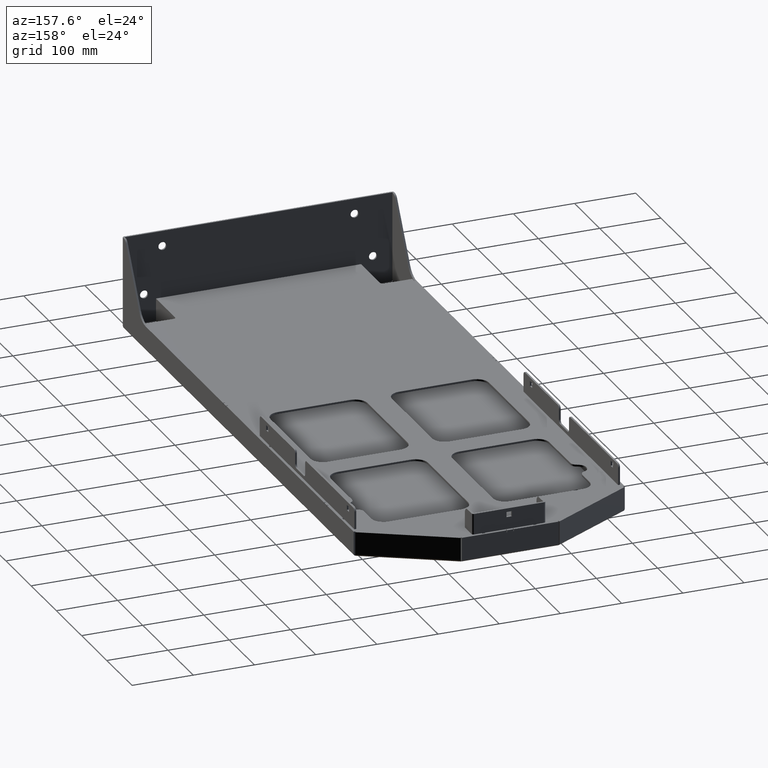
[diagram: clean part render]
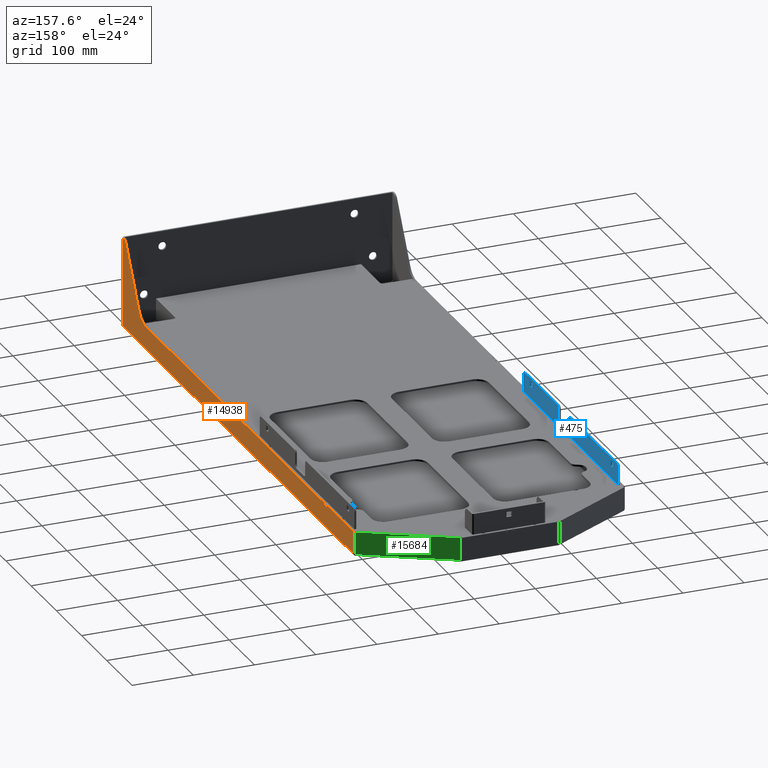
[diagram: same view with three faces highlighted in distinct colors, each labeled with its STEP entity id]
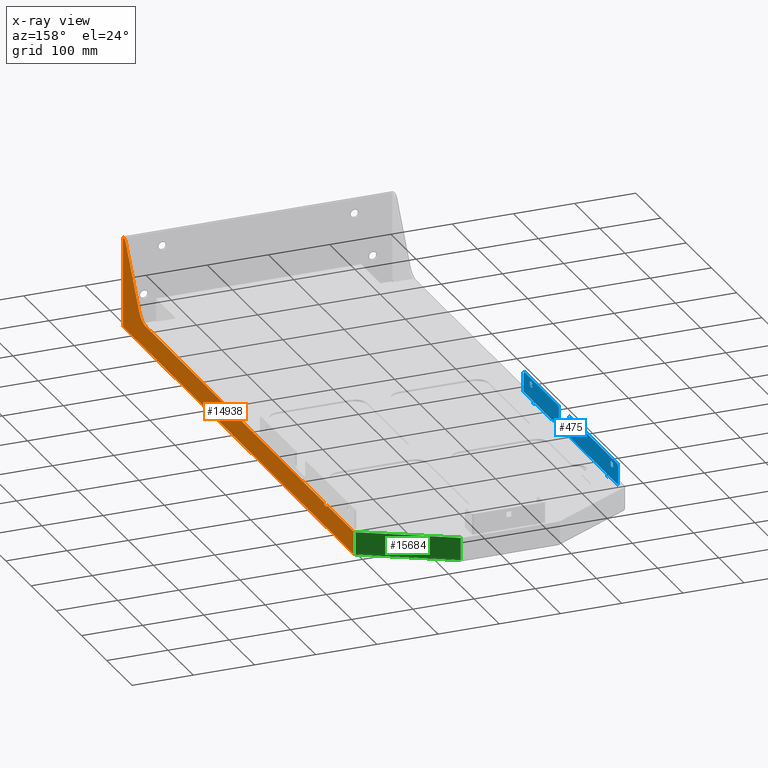
[diagram: x-ray of the same camera — body ghosted, the three highlighted faces saturated]
A machine part, auxiliary view with three faces highlighted in distinct colors.
The next image is the same camera in x-ray (body ghosted, the three faces saturated) — at least one of them is partly hidden behind the body in this view.
Their STEP definitions:

[orange] entity #14938 — the highlighted planar face has unit normal (1, -0, -0).
#2876 = VERTEX_POINT ( 'NONE', #6975 ) ;
#2878 = EDGE_CURVE ( 'NONE', #2876, #2885, #7069, .T. ) ;
#2885 = VERTEX_POINT ( 'NONE', #7068 ) ;
#2888 = EDGE_CURVE ( 'NONE', #2901, #3095, #7100, .T. ) ;
#2897 = VERTEX_POINT ( 'NONE', #7025 ) ;
#2898 = EDGE_CURVE ( 'NONE', #2876, #2911, #7017, .T. ) ;
#2899 = VERTEX_POINT ( 'NONE', #7101 ) ;
#2901 = VERTEX_POINT ( 'NONE', #7096 ) ;
#2903 = EDGE_CURVE ( 'NONE', #2993, #2897, #7018, .T. ) ;
#2907 = EDGE_CURVE ( 'NONE', #2899, #2910, #7024, .T. ) ;
#2910 = VERTEX_POINT ( 'NONE', #7138 ) ;
#2911 = VERTEX_POINT ( 'NONE', #7143 ) ;
#2913 = EDGE_CURVE ( 'NONE', #2901, #2899, #7276, .T. ) ;
#2932 = EDGE_CURVE ( 'NONE', #2885, #2941, #7202, .T. ) ;
#2940 = EDGE_CURVE ( 'NONE', #2941, #2993, #7192, .T. ) ;
#2941 = VERTEX_POINT ( 'NONE', #7350 ) ;
#2993 = VERTEX_POINT ( 'NONE', #7688 ) ;
#3094 = VERTEX_POINT ( 'NONE', #8285 ) ;
#3095 = VERTEX_POINT ( 'NONE', #8286 ) ;
#3099 = VERTEX_POINT ( 'NONE', #8205 ) ;
#3100 = EDGE_CURVE ( 'NONE', #3099, #3094, #8282, .T. ) ;
#6975 = CARTESIAN_POINT ( 'NONE',  ( 221.4999999999999700, 399.9999999999997700, 36.99999999999978000 ) ) ;
#7005 = DIRECTION ( 'NONE',  ( -3.469446951953617300E-018, -1.000000000000000000, 3.651592916931182400E-016 ) ) ;
#7006 = VECTOR ( 'NONE', #7005, 1000.000000000000000 ) ;
#7007 = CARTESIAN_POINT ( 'NONE',  ( 221.4999999999999100, 75.50852961085796300, 39.99999999999997900 ) ) ;
#7010 = DIRECTION ( 'NONE',  ( 5.551115123125788900E-017, -0.4999999999999955000, 0.8660254037844412600 ) ) ;
#7011 = VECTOR ( 'NONE', #7010, 999.9999999999998900 ) ;
#7013 = CARTESIAN_POINT ( 'NONE',  ( 221.4999999999998900, 11.99999999999967700, 149.9999999999998000 ) ) ;
#7014 = DIRECTION ( 'NONE',  ( 0.0000000000000000000, 1.000000000000000000, -3.642919299551298300E-016 ) ) ;
#7015 = VECTOR ( 'NONE', #7014, 1000.000000000000000 ) ;
#7016 = CARTESIAN_POINT ( 'NONE',  ( 221.4999999999999700, 399.9999999999997700, 36.99999999999978000 ) ) ;
#7017 = LINE ( 'NONE', #7016, #7015 ) ;
#7018 = LINE ( 'NONE', #7013, #7011 ) ;
#7024 = LINE ( 'NONE', #7007, #7006 ) ;
#7025 = CARTESIAN_POINT ( 'NONE',  ( 221.4999999999999700, 14.88675134594807900, 144.9999999999998600 ) ) ;
#7061 = DIRECTION ( 'NONE',  ( 0.0000000000000000000, -2.584737979205446000E-016, 1.000000000000000000 ) ) ;
#7062 = VECTOR ( 'NONE', #7061, 1000.000000000000000 ) ;
#7063 = CARTESIAN_POINT ( 'NONE',  ( 221.4999999999999700, 399.9999999999997700, 36.99999999999978000 ) ) ;
#7068 = CARTESIAN_POINT ( 'NONE',  ( 221.4999999999998600, 399.9999999999998900, 39.99999999999976600 ) ) ;
#7069 = LINE ( 'NONE', #7063, #7062 ) ;
#7096 = CARTESIAN_POINT ( 'NONE',  ( 221.4999999999999700, 800.0000000000000000, 36.99999999999997900 ) ) ;
#7097 = DIRECTION ( 'NONE',  ( 0.0000000000000000000, 1.000000000000000000, -3.642919299551298300E-016 ) ) ;
#7098 = VECTOR ( 'NONE', #7097, 1000.000000000000000 ) ;
#7099 = CARTESIAN_POINT ( 'NONE',  ( 221.4999999999999100, 811.9999999999998900, 36.99999999999970200 ) ) ;
#7100 = LINE ( 'NONE', #7099, #7098 ) ;
#7101 = CARTESIAN_POINT ( 'NONE',  ( 221.4999999999998000, 799.9999999999996600, 39.99999999999963100 ) ) ;
#7138 = CARTESIAN_POINT ( 'NONE',  ( 221.4999999999999100, 411.9999999999997200, 39.99999999999975800 ) ) ;
#7143 = CARTESIAN_POINT ( 'NONE',  ( 221.4999999999998900, 411.9999999999997200, 36.99999999999985100 ) ) ;
#7186 = DIRECTION ( 'NONE',  ( -3.469446951953617300E-018, -1.000000000000000000, 3.651592916931182400E-016 ) ) ;
#7188 = VECTOR ( 'NONE', #7186, 1000.000000000000000 ) ;
#7190 = CARTESIAN_POINT ( 'NONE',  ( 221.4999999999999100, 75.50852961085796300, 39.99999999999997900 ) ) ;
#7192 = CIRCLE ( 'NONE', #7349, 29.99999999999995700 ) ;
#7202 = LINE ( 'NONE', #7190, #7188 ) ;
#7273 = DIRECTION ( 'NONE',  ( 0.0000000000000000000, -2.584737979205446000E-016, 1.000000000000000000 ) ) ;
#7274 = VECTOR ( 'NONE', #7273, 1000.000000000000000 ) ;
#7275 = CARTESIAN_POINT ( 'NONE',  ( 221.4999999999999700, 800.0000000000000000, 36.99999999999997900 ) ) ;
#7276 = LINE ( 'NONE', #7275, #7274 ) ;
#7333 = DIRECTION ( 'NONE',  ( 0.0000000000000000000, 4.625929269271491800E-016, -1.000000000000000000 ) ) ;
#7335 = DIRECTION ( 'NONE',  ( -1.000000000000000000, 4.336808689942017700E-017, -5.551115123125782700E-017 ) ) ;
#7337 = CARTESIAN_POINT ( 'NONE',  ( 221.4999999999999700, 92.82903768654688300, 69.99999999999998600 ) ) ;
#7349 = AXIS2_PLACEMENT_3D ( 'NONE', #7337, #7335, #7333 ) ;
#7350 = CARTESIAN_POINT ( 'NONE',  ( 221.4999999999999400, 92.82903768654676900, 39.99999999999993600 ) ) ;
#7688 = CARTESIAN_POINT ( 'NONE',  ( 221.4999999999999400, 66.84827557301353800, 55.00000000000012100 ) ) ;
#8195 = CARTESIAN_POINT ( 'NONE',  ( 221.4999999999999400, 3.099999999999714100, 3.807106781186175800 ) ) ;
#8205 = CARTESIAN_POINT ( 'NONE',  ( 221.4999999999999100, 917.5036040697966700, 39.99999999999967300 ) ) ;
#8223 = LINE ( 'NONE', #8345, #8343 ) ;
#8227 = LINE ( 'NONE', #8375, #8374 ) ;
#8231 = DIRECTION ( 'NONE',  ( 0.0000000000000000000, 2.584737979205446000E-016, -1.000000000000000000 ) ) ;
#8234 = DIRECTION ( 'NONE',  ( 1.000000000000000000, -4.336808689942016500E-017, -1.120951412944134600E-032 ) ) ;
#8236 = CARTESIAN_POINT ( 'NONE',  ( 221.4999999999999700, 1000.999999999999900, -8.326672684688674100E-014 ) ) ;
#8238 = CARTESIAN_POINT ( 'NONE',  ( 221.4999999999998600, 6.226497308103318100, 139.9999999999997400 ) ) ;
#8239 = CIRCLE ( 'NONE', #8372, 9.999999999999980500 ) ;
#8244 = CARTESIAN_POINT ( 'NONE',  ( 221.4999999999999100, 3.128413837092044200, 3.835520618278568200 ) ) ;
#8245 = FACE_OUTER_BOUND ( 'NONE', #14958, .T. ) ;
#8252 = AXIS2_PLACEMENT_3D ( 'NONE', #8236, #8234, #8231 ) ;
#8253 = DIRECTION ( 'NONE',  ( -3.469446951953617300E-018, -1.000000000000000000, 3.651592916931182400E-016 ) ) ;
#8255 = VECTOR ( 'NONE', #8253, 1000.000000000000000 ) ;
#8257 = CARTESIAN_POINT ( 'NONE',  ( 221.4999999999999100, 75.50852961085796300, 39.99999999999997900 ) ) ;
#8259 = CARTESIAN_POINT ( 'NONE',  ( 221.5000000000000300, 6.226497308103651200, 149.9999999999999700 ) ) ;
#8267 = PLANE ( 'NONE',  #8252 ) ;
#8282 = LINE ( 'NONE', #8257, #8255 ) ;
#8284 = CARTESIAN_POINT ( 'NONE',  ( 221.4999999999999700, 917.5036040697972300, 3.100000000000005400 ) ) ;
#8285 = CARTESIAN_POINT ( 'NONE',  ( 221.4999999999999700, 811.9999999999998900, 39.99999999999973000 ) ) ;
#8286 = CARTESIAN_POINT ( 'NONE',  ( 221.4999999999999100, 811.9999999999998900, 36.99999999999970200 ) ) ;
#8320 = DIRECTION ( 'NONE',  ( 0.0000000000000000000, -1.000000000000000000, 3.729655473350138300E-017 ) ) ;
#8321 = VECTOR ( 'NONE', #8320, 1000.000000000000000 ) ;
#8323 = CARTESIAN_POINT ( 'NONE',  ( 221.5000000000000300, 0.0000000000000000000, 149.9999999999999700 ) ) ;
#8324 = LINE ( 'NONE', #8323, #8321 ) ;
#8334 = CARTESIAN_POINT ( 'NONE',  ( 221.4999999999999100, 3.831319355381861000, 3.124212574195398800 ) ) ;
#8341 = DIRECTION ( 'NONE',  ( 5.551115123125791300E-017, 0.7071067811865438000, 0.7071067811865512400 ) ) ;
#8343 = VECTOR ( 'NONE', #8341, 999.9999999999998900 ) ;
#8345 = CARTESIAN_POINT ( 'NONE',  ( 221.4999999999997700, 0.3535533905932863900, -0.3535533905932031200 ) ) ;
#8351 = CARTESIAN_POINT ( 'NONE',  ( 221.5000000000000300, 3.099999999999991700, 150.0000000000004000 ) ) ;
#8352 = DIRECTION ( 'NONE',  ( 0.0000000000000000000, 5.204170427930431100E-016, -1.000000000000000000 ) ) ;
#8353 = DIRECTION ( 'NONE',  ( 1.000000000000000000, 1.040834085586084300E-017, -2.775557561562891400E-016 ) ) ;
#8361 = DIRECTION ( 'NONE',  ( 2.775557561562895300E-016, -2.072994553792287200E-016, 1.000000000000000000 ) ) ;
#8362 = VECTOR ( 'NONE', #8361, 1000.000000000000000 ) ;
#8363 = CARTESIAN_POINT ( 'NONE',  ( 221.5000000000000900, 3.099999999999936100, 149.9999999999999700 ) ) ;
#8365 = LINE ( 'NONE', #8363, #8362 ) ;
#8368 = DIRECTION ( 'NONE',  ( 2.081668171172170400E-017, -1.000000000000000000, 1.639313684798084200E-016 ) ) ;
#8369 = VECTOR ( 'NONE', #8368, 1000.000000000000000 ) ;
#8370 = CARTESIAN_POINT ( 'NONE',  ( 221.4999999999999100, 3.807106781186064800, 3.099999999999769600 ) ) ;
#8371 = LINE ( 'NONE', #8370, #8369 ) ;
#8372 = AXIS2_PLACEMENT_3D ( 'NONE', #8238, #8353, #8352 ) ;
#8373 = DIRECTION ( 'NONE',  ( 0.0000000000000000000, 2.584737979205446000E-016, -1.000000000000000000 ) ) ;
#8374 = VECTOR ( 'NONE', #8373, 1000.000000000000000 ) ;
#8375 = CARTESIAN_POINT ( 'NONE',  ( 221.4999999999998600, 917.5036040697964400, -1.387778780781445700E-013 ) ) ;
#14775 = DIRECTION ( 'NONE',  ( 0.0000000000000000000, -2.584737979205446000E-016, 1.000000000000000000 ) ) ;
#14777 = VECTOR ( 'NONE', #14775, 1000.000000000000000 ) ;
#14778 = CARTESIAN_POINT ( 'NONE',  ( 221.4999999999999100, 811.9999999999998900, 36.99999999999970200 ) ) ;
#14780 = LINE ( 'NONE', #14778, #14777 ) ;
#14834 = DIRECTION ( 'NONE',  ( -2.775557561562895800E-016, -0.7071067811865438000, -0.7071067811865513500 ) ) ;
#14835 = VECTOR ( 'NONE', #14834, 1000.000000000000000 ) ;
#14836 = CARTESIAN_POINT ( 'NONE',  ( 221.5000000000002600, 500.1464466094006400, 500.8535533905924800 ) ) ;
#14837 = DIRECTION ( 'NONE',  ( 0.0000000000000000000, -2.584737979205446000E-016, 1.000000000000000000 ) ) ;
#14838 = VECTOR ( 'NONE', #14837, 1000.000000000000000 ) ;
#14839 = CARTESIAN_POINT ( 'NONE',  ( 221.4999999999998900, 411.9999999999997200, 36.99999999999985100 ) ) ;
#14862 = DIRECTION ( 'NONE',  ( -0.0000000000000000000, -0.7028931119072211500, 0.7112954893947962500 ) ) ;
#14863 = VECTOR ( 'NONE', #14862, 1000.000000000000000 ) ;
#14864 = CARTESIAN_POINT ( 'NONE',  ( 221.4999999999999100, 3.128413837092044200, 3.835520618278568200 ) ) ;
#14865 = LINE ( 'NONE', #14836, #14835 ) ;
#14870 = LINE ( 'NONE', #14839, #14838 ) ;
#14887 = LINE ( 'NONE', #14864, #14863 ) ;
#14888 = CARTESIAN_POINT ( 'NONE',  ( 221.4999999999999400, 3.807106781186175800, 3.099999999999589300 ) ) ;
#14936 = VERTEX_POINT ( 'NONE', #8284 ) ;
#14937 = ORIENTED_EDGE ( 'NONE', *, *, #2903, .T. ) ;
#14938 = ADVANCED_FACE ( 'NONE', ( #8245 ), #8267, .T. ) ;
#14939 = ORIENTED_EDGE ( 'NONE', *, *, #3100, .T. ) ;
#14940 = VERTEX_POINT ( 'NONE', #8195 ) ;
#14941 = VERTEX_POINT ( 'NONE', #8259 ) ;
#14942 = VERTEX_POINT ( 'NONE', #8244 ) ;
#14943 = ORIENTED_EDGE ( 'NONE', *, *, #2932, .T. ) ;
#14944 = ORIENTED_EDGE ( 'NONE', *, *, #14946, .F. ) ;
#14945 = EDGE_CURVE ( 'NONE', #3099, #14936, #8227, .T. ) ;
#14946 = EDGE_CURVE ( 'NONE', #14936, #16363, #8371, .T. ) ;
#14947 = EDGE_CURVE ( 'NONE', #14940, #14953, #8365, .T. ) ;
#14948 = ORIENTED_EDGE ( 'NONE', *, *, #2913, .T. ) ;
#14949 = EDGE_CURVE ( 'NONE', #2897, #14941, #8239, .T. ) ;
#14950 = ORIENTED_EDGE ( 'NONE', *, *, #14945, .F. ) ;
#14951 = EDGE_CURVE ( 'NONE', #16363, #14957, #8223, .T. ) ;
#14953 = VERTEX_POINT ( 'NONE', #8351 ) ;
#14954 = ORIENTED_EDGE ( 'NONE', *, *, #16342, .F. ) ;
#14955 = ORIENTED_EDGE ( 'NONE', *, *, #2888, .F. ) ;
#14957 = VERTEX_POINT ( 'NONE', #8334 ) ;
#14958 = EDGE_LOOP ( 'NONE', ( #14944, #14950, #14939, #14954, #14955, #14948, #16350, #14968, #14960, #16349, #14943, #16353, #14937, #14973, #14959, #14972, #16355, #14970, #16346 ) ) ;
#14959 = ORIENTED_EDGE ( 'NONE', *, *, #14974, .T. ) ;
#14960 = ORIENTED_EDGE ( 'NONE', *, *, #2898, .F. ) ;
#14968 = ORIENTED_EDGE ( 'NONE', *, *, #16359, .F. ) ;
#14970 = ORIENTED_EDGE ( 'NONE', *, *, #16347, .F. ) ;
#14972 = ORIENTED_EDGE ( 'NONE', *, *, #14947, .F. ) ;
#14973 = ORIENTED_EDGE ( 'NONE', *, *, #14949, .T. ) ;
#14974 = EDGE_CURVE ( 'NONE', #14941, #14953, #8324, .T. ) ;
#16342 = EDGE_CURVE ( 'NONE', #3095, #3094, #14780, .T. ) ;
#16346 = ORIENTED_EDGE ( 'NONE', *, *, #14951, .F. ) ;
#16347 = EDGE_CURVE ( 'NONE', #14957, #14942, #14887, .T. ) ;
#16349 = ORIENTED_EDGE ( 'NONE', *, *, #2878, .T. ) ;
#16350 = ORIENTED_EDGE ( 'NONE', *, *, #2907, .T. ) ;
#16353 = ORIENTED_EDGE ( 'NONE', *, *, #2940, .T. ) ;
#16355 = ORIENTED_EDGE ( 'NONE', *, *, #16365, .F. ) ;
#16359 = EDGE_CURVE ( 'NONE', #2911, #2910, #14870, .T. ) ;
#16363 = VERTEX_POINT ( 'NONE', #14888 ) ;
#16365 = EDGE_CURVE ( 'NONE', #14942, #14940, #14865, .T. ) ;

[blue] entity #475 — the highlighted planar face has unit normal (-1, -0, -0).
#404 = VERTEX_POINT ( 'NONE', #8756 ) ;
#406 = VERTEX_POINT ( 'NONE', #8778 ) ;
#407 = EDGE_CURVE ( 'NONE', #406, #454, #8733, .T. ) ;
#423 = EDGE_CURVE ( 'NONE', #454, #427, #8681, .T. ) ;
#424 = VERTEX_POINT ( 'NONE', #8782 ) ;
#425 = ORIENTED_EDGE ( 'NONE', *, *, #423, .T. ) ;
#426 = VERTEX_POINT ( 'NONE', #8683 ) ;
#427 = VERTEX_POINT ( 'NONE', #8675 ) ;
#428 = VERTEX_POINT ( 'NONE', #8674 ) ;
#429 = EDGE_CURVE ( 'NONE', #427, #426, #8673, .T. ) ;
#430 = ORIENTED_EDGE ( 'NONE', *, *, #461, .T. ) ;
#431 = VERTEX_POINT ( 'NONE', #8919 ) ;
#432 = EDGE_CURVE ( 'NONE', #426, #428, #9280, .T. ) ;
#444 = EDGE_CURVE ( 'NONE', #462, #463, #9228, .T. ) ;
#454 = VERTEX_POINT ( 'NONE', #9102 ) ;
#455 = VERTEX_POINT ( 'NONE', #9089 ) ;
#459 = VERTEX_POINT ( 'NONE', #8967 ) ;
#460 = VERTEX_POINT ( 'NONE', #8973 ) ;
#461 = EDGE_CURVE ( 'NONE', #608, #459, #9137, .T. ) ;
#462 = VERTEX_POINT ( 'NONE', #8960 ) ;
#463 = VERTEX_POINT ( 'NONE', #8957 ) ;
#468 = VERTEX_POINT ( 'NONE', #8891 ) ;
#469 = EDGE_CURVE ( 'NONE', #459, #567, #9035, .T. ) ;
#470 = ORIENTED_EDGE ( 'NONE', *, *, #469, .T. ) ;
#471 = EDGE_CURVE ( 'NONE', #567, #404, #9026, .T. ) ;
#472 = ORIENTED_EDGE ( 'NONE', *, *, #471, .T. ) ;
#473 = EDGE_CURVE ( 'NONE', #460, #468, #9014, .T. ) ;
#474 = ORIENTED_EDGE ( 'NONE', *, *, #473, .T. ) ;
#475 = ADVANCED_FACE ( 'NONE', ( #9030, #9020, #9015 ), #8867, .F. ) ;
#476 = ORIENTED_EDGE ( 'NONE', *, *, #613, .F. ) ;
#477 = VERTEX_POINT ( 'NONE', #9040 ) ;
#478 = ORIENTED_EDGE ( 'NONE', *, *, #482, .T. ) ;
#479 = ORIENTED_EDGE ( 'NONE', *, *, #432, .T. ) ;
#480 = EDGE_CURVE ( 'NONE', #428, #424, #8466, .T. ) ;
#481 = ORIENTED_EDGE ( 'NONE', *, *, #485, .T. ) ;
#482 = EDGE_CURVE ( 'NONE', #424, #431, #8474, .T. ) ;
#483 = EDGE_CURVE ( 'NONE', #431, #477, #8228, .T. ) ;
#484 = ORIENTED_EDGE ( 'NONE', *, *, #483, .T. ) ;
#485 = EDGE_CURVE ( 'NONE', #477, #608, #9453, .T. ) ;
#486 = ORIENTED_EDGE ( 'NONE', *, *, #563, .T. ) ;
#487 = ORIENTED_EDGE ( 'NONE', *, *, #488, .T. ) ;
#488 = EDGE_CURVE ( 'NONE', #544, #406, #9427, .T. ) ;
#539 = ORIENTED_EDGE ( 'NONE', *, *, #617, .F. ) ;
#540 = EDGE_LOOP ( 'NONE', ( #541, #543, #487, #619, #425, #569, #479, #542, #478, #484, #481, #430, #470, #472, #486, #474, #641, #666, #826, #661, #579, #789 ) ) ;
#541 = ORIENTED_EDGE ( 'NONE', *, *, #618, .T. ) ;
#542 = ORIENTED_EDGE ( 'NONE', *, *, #480, .T. ) ;
#543 = ORIENTED_EDGE ( 'NONE', *, *, #545, .T. ) ;
#544 = VERTEX_POINT ( 'NONE', #9701 ) ;
#545 = EDGE_CURVE ( 'NONE', #455, #544, #9551, .T. ) ;
#560 = VERTEX_POINT ( 'NONE', #9521 ) ;
#561 = VERTEX_POINT ( 'NONE', #9565 ) ;
#563 = EDGE_CURVE ( 'NONE', #404, #460, #9549, .T. ) ;
#564 = EDGE_LOOP ( 'NONE', ( #612, #476, #616, #539 ) ) ;
#567 = VERTEX_POINT ( 'NONE', #9514 ) ;
#569 = ORIENTED_EDGE ( 'NONE', *, *, #429, .T. ) ;
#579 = ORIENTED_EDGE ( 'NONE', *, *, #790, .F. ) ;
#580 = EDGE_CURVE ( 'NONE', #660, #615, #9523, .T. ) ;
#581 = VERTEX_POINT ( 'NONE', #9515 ) ;
#582 = EDGE_LOOP ( 'NONE', ( #585, #588, #821, #586 ) ) ;
#583 = VERTEX_POINT ( 'NONE', #9575 ) ;
#584 = EDGE_CURVE ( 'NONE', #581, #824, #9506, .T. ) ;
#585 = ORIENTED_EDGE ( 'NONE', *, *, #584, .F. ) ;
#586 = ORIENTED_EDGE ( 'NONE', *, *, #822, .F. ) ;
#588 = ORIENTED_EDGE ( 'NONE', *, *, #643, .F. ) ;
#589 = EDGE_CURVE ( 'NONE', #665, #583, #9573, .T. ) ;
#608 = VERTEX_POINT ( 'NONE', #9597 ) ;
#612 = ORIENTED_EDGE ( 'NONE', *, *, #444, .F. ) ;
#613 = EDGE_CURVE ( 'NONE', #561, #462, #9688, .T. ) ;
#614 = EDGE_CURVE ( 'NONE', #560, #561, #9681, .T. ) ;
#615 = VERTEX_POINT ( 'NONE', #9689 ) ;
#616 = ORIENTED_EDGE ( 'NONE', *, *, #614, .F. ) ;
#617 = EDGE_CURVE ( 'NONE', #463, #560, #9671, .T. ) ;
#618 = EDGE_CURVE ( 'NONE', #615, #455, #8045, .T. ) ;
#619 = ORIENTED_EDGE ( 'NONE', *, *, #407, .T. ) ;
#641 = ORIENTED_EDGE ( 'NONE', *, *, #659, .F. ) ;
#642 = EDGE_CURVE ( 'NONE', #662, #757, #10069, .T. ) ;
#643 = EDGE_CURVE ( 'NONE', #583, #581, #10071, .T. ) ;
#659 = EDGE_CURVE ( 'NONE', #662, #468, #10150, .T. ) ;
#660 = VERTEX_POINT ( 'NONE', #10154 ) ;
#661 = ORIENTED_EDGE ( 'NONE', *, *, #788, .T. ) ;
#662 = VERTEX_POINT ( 'NONE', #10144 ) ;
#665 = VERTEX_POINT ( 'NONE', #10142 ) ;
#666 = ORIENTED_EDGE ( 'NONE', *, *, #642, .T. ) ;
#667 = EDGE_CURVE ( 'NONE', #823, #757, #10136, .T. ) ;
#757 = VERTEX_POINT ( 'NONE', #10909 ) ;
#788 = EDGE_CURVE ( 'NONE', #823, #825, #11182, .T. ) ;
#789 = ORIENTED_EDGE ( 'NONE', *, *, #580, .T. ) ;
#790 = EDGE_CURVE ( 'NONE', #660, #825, #11070, .T. ) ;
#821 = ORIENTED_EDGE ( 'NONE', *, *, #589, .F. ) ;
#822 = EDGE_CURVE ( 'NONE', #824, #665, #11272, .T. ) ;
#823 = VERTEX_POINT ( 'NONE', #11156 ) ;
#824 = VERTEX_POINT ( 'NONE', #11074 ) ;
#825 = VERTEX_POINT ( 'NONE', #11177 ) ;
#826 = ORIENTED_EDGE ( 'NONE', *, *, #667, .F. ) ;
#8045 = LINE ( 'NONE', #8053, #8082 ) ;
#8051 = VECTOR ( 'NONE', #8080, 1000.000000000000000 ) ;
#8053 = CARTESIAN_POINT ( 'NONE',  ( -214.0000000000000000, 534.5000000000002300, 74.00000000000014200 ) ) ;
#8068 = VECTOR ( 'NONE', #8079, 1000.000000000000000 ) ;
#8079 = DIRECTION ( 'NONE',  ( -8.673617379884044700E-018, 1.000000000000000000, -4.276093368282834400E-016 ) ) ;
#8080 = DIRECTION ( 'NONE',  ( -5.551115123125797500E-017, 9.652868782072968300E-015, -1.000000000000000000 ) ) ;
#8082 = VECTOR ( 'NONE', #8083, 1000.000000000000000 ) ;
#8083 = DIRECTION ( 'NONE',  ( 2.255140518769851100E-017, -1.000000000000000000, 3.538835890992689400E-016 ) ) ;
#8228 = LINE ( 'NONE', #8241, #8068 ) ;
#8241 = CARTESIAN_POINT ( 'NONE',  ( -214.0000000000000900, 865.4999999999998900, 37.00000000000006400 ) ) ;
#8466 = LINE ( 'NONE', #8591, #8568 ) ;
#8473 = CARTESIAN_POINT ( 'NONE',  ( -214.0000000000000300, 865.4999999999996600, 40.00000000000013500 ) ) ;
#8474 = LINE ( 'NONE', #8473, #8051 ) ;
#8566 = DIRECTION ( 'NONE',  ( -2.255140518769851100E-017, 1.000000000000000000, -3.538835890992689400E-016 ) ) ;
#8568 = VECTOR ( 'NONE', #8566, 1000.000000000000000 ) ;
#8591 = CARTESIAN_POINT ( 'NONE',  ( -213.9999999999999400, 534.5000000000002300, 40.00000000000027700 ) ) ;
#8673 = LINE ( 'NONE', #8770, #8860 ) ;
#8674 = CARTESIAN_POINT ( 'NONE',  ( -213.9999999999999700, 578.5000000000002300, 40.00000000000024200 ) ) ;
#8675 = CARTESIAN_POINT ( 'NONE',  ( -214.0000000000001700, 574.5000000000004500, 37.00000000000017100 ) ) ;
#8676 = DIRECTION ( 'NONE',  ( 0.0000000000000000000, 3.764349942869679800E-016, -1.000000000000000000 ) ) ;
#8677 = VECTOR ( 'NONE', #8676, 1000.000000000000000 ) ;
#8679 = CARTESIAN_POINT ( 'NONE',  ( -213.9999999999999400, 574.5000000000003400, 40.00000000000021300 ) ) ;
#8681 = LINE ( 'NONE', #8679, #8677 ) ;
#8682 = AXIS2_PLACEMENT_3D ( 'NONE', #8873, #8857, #8866 ) ;
#8683 = CARTESIAN_POINT ( 'NONE',  ( -214.0000000000000300, 578.5000000000004500, 37.00000000000024200 ) ) ;
#8733 = LINE ( 'NONE', #8817, #8815 ) ;
#8756 = CARTESIAN_POINT ( 'NONE',  ( -214.0000000000001700, 904.5000000000001100, 73.99999999999987200 ) ) ;
#8770 = CARTESIAN_POINT ( 'NONE',  ( -214.0000000000001700, 574.5000000000004500, 37.00000000000017100 ) ) ;
#8778 = CARTESIAN_POINT ( 'NONE',  ( -213.9999999999999400, 534.5000000000002300, 40.00000000000027700 ) ) ;
#8782 = CARTESIAN_POINT ( 'NONE',  ( -214.0000000000002300, 865.4999999999998900, 40.00000000000012100 ) ) ;
#8815 = VECTOR ( 'NONE', #8879, 1000.000000000000000 ) ;
#8817 = CARTESIAN_POINT ( 'NONE',  ( -213.9999999999999400, 534.5000000000002300, 40.00000000000027700 ) ) ;
#8857 = DIRECTION ( 'NONE',  ( -1.000000000000000000, -1.214306433183764800E-017, -4.571074352381589700E-033 ) ) ;
#8859 = DIRECTION ( 'NONE',  ( -8.673617379884044700E-018, 1.000000000000000000, -4.276093368282834400E-016 ) ) ;
#8860 = VECTOR ( 'NONE', #8859, 1000.000000000000000 ) ;
#8866 = DIRECTION ( 'NONE',  ( 0.0000000000000000000, -3.764349942869679800E-016, 1.000000000000000000 ) ) ;
#8867 = PLANE ( 'NONE',  #8682 ) ;
#8873 = CARTESIAN_POINT ( 'NONE',  ( -214.0000000000000000, 909.5000000000001100, 74.00000000000008500 ) ) ;
#8879 = DIRECTION ( 'NONE',  ( -2.255140518769851100E-017, 1.000000000000000000, -3.538835890992689400E-016 ) ) ;
#8891 = CARTESIAN_POINT ( 'NONE',  ( -214.0000000000000000, 714.5000000000001100, 69.00000000000008500 ) ) ;
#8919 = CARTESIAN_POINT ( 'NONE',  ( -214.0000000000000900, 865.4999999999998900, 37.00000000000006400 ) ) ;
#8947 = AXIS2_PLACEMENT_3D ( 'NONE', #9025, #9024, #9022 ) ;
#8951 = DIRECTION ( 'NONE',  ( -2.255140518769851100E-017, 1.000000000000000000, -3.538835890992689400E-016 ) ) ;
#8953 = VECTOR ( 'NONE', #8951, 1000.000000000000000 ) ;
#8955 = CARTESIAN_POINT ( 'NONE',  ( -213.9999999999999400, 534.5000000000002300, 40.00000000000027700 ) ) ;
#8957 = CARTESIAN_POINT ( 'NONE',  ( -214.0000000000000300, 879.7500000000001100, 68.24999999999998600 ) ) ;
#8960 = CARTESIAN_POINT ( 'NONE',  ( -214.0000000000000900, 888.2500000000002300, 68.24999999999998600 ) ) ;
#8967 = CARTESIAN_POINT ( 'NONE',  ( -214.0000000000000300, 909.5000000000000000, 40.00000000000012100 ) ) ;
#8973 = CARTESIAN_POINT ( 'NONE',  ( -214.0000000000000300, 719.5000000000002300, 74.00000000000000000 ) ) ;
#9010 = DIRECTION ( 'NONE',  ( 0.0000000000000000000, 0.0000000000000000000, 1.000000000000000000 ) ) ;
#9011 = DIRECTION ( 'NONE',  ( 1.000000000000000000, 1.214306433183765000E-017, -0.0000000000000000000 ) ) ;
#9012 = CARTESIAN_POINT ( 'NONE',  ( -214.0000000000000300, 719.5000000000002300, 69.00000000000004300 ) ) ;
#9014 = CIRCLE ( 'NONE', #9031, 4.999999999999990200 ) ;
#9015 = FACE_BOUND ( 'NONE', #582, .T. ) ;
#9020 = FACE_OUTER_BOUND ( 'NONE', #540, .T. ) ;
#9022 = DIRECTION ( 'NONE',  ( 0.0000000000000000000, 0.0000000000000000000, 1.000000000000000000 ) ) ;
#9024 = DIRECTION ( 'NONE',  ( 1.000000000000000000, 1.214306433183765000E-017, -0.0000000000000000000 ) ) ;
#9025 = CARTESIAN_POINT ( 'NONE',  ( -214.0000000000001100, 904.5000000000001100, 68.99999999999997200 ) ) ;
#9026 = CIRCLE ( 'NONE', #8947, 4.999999999999990200 ) ;
#9030 = FACE_BOUND ( 'NONE', #564, .T. ) ;
#9031 = AXIS2_PLACEMENT_3D ( 'NONE', #9012, #9011, #9010 ) ;
#9032 = DIRECTION ( 'NONE',  ( 0.0000000000000000000, -3.764349942869679800E-016, 1.000000000000000000 ) ) ;
#9033 = VECTOR ( 'NONE', #9032, 1000.000000000000000 ) ;
#9034 = CARTESIAN_POINT ( 'NONE',  ( -214.0000000000000000, 909.5000000000001100, 74.00000000000008500 ) ) ;
#9035 = LINE ( 'NONE', #9034, #9033 ) ;
#9040 = CARTESIAN_POINT ( 'NONE',  ( -214.0000000000000300, 869.4999999999998900, 36.99999999999997900 ) ) ;
#9089 = CARTESIAN_POINT ( 'NONE',  ( -214.0000000000000600, 539.5000000000003400, 74.00000000000014200 ) ) ;
#9102 = CARTESIAN_POINT ( 'NONE',  ( -213.9999999999999400, 574.5000000000003400, 40.00000000000021300 ) ) ;
#9137 = LINE ( 'NONE', #8955, #8953 ) ;
#9224 = DIRECTION ( 'NONE',  ( 8.673617379884044700E-018, -1.000000000000000000, 4.276093368282834400E-016 ) ) ;
#9226 = VECTOR ( 'NONE', #9224, 1000.000000000000000 ) ;
#9227 = CARTESIAN_POINT ( 'NONE',  ( -214.0000000000000300, 879.7500000000001100, 68.24999999999998600 ) ) ;
#9228 = LINE ( 'NONE', #9227, #9226 ) ;
#9277 = DIRECTION ( 'NONE',  ( 0.0000000000000000000, -3.764349942869679800E-016, 1.000000000000000000 ) ) ;
#9278 = VECTOR ( 'NONE', #9277, 1000.000000000000000 ) ;
#9279 = CARTESIAN_POINT ( 'NONE',  ( -213.9999999999999700, 578.5000000000002300, 40.00000000000024200 ) ) ;
#9280 = LINE ( 'NONE', #9279, #9278 ) ;
#9427 = LINE ( 'NONE', #9447, #9446 ) ;
#9445 = DIRECTION ( 'NONE',  ( 0.0000000000000000000, 3.764349942869679800E-016, -1.000000000000000000 ) ) ;
#9446 = VECTOR ( 'NONE', #9445, 1000.000000000000000 ) ;
#9447 = CARTESIAN_POINT ( 'NONE',  ( -214.0000000000000000, 534.5000000000002300, 74.00000000000014200 ) ) ;
#9450 = DIRECTION ( 'NONE',  ( 0.0000000000000000000, -3.764349942869679800E-016, 1.000000000000000000 ) ) ;
#9451 = VECTOR ( 'NONE', #9450, 1000.000000000000000 ) ;
#9452 = CARTESIAN_POINT ( 'NONE',  ( -214.0000000000000900, 869.5000000000001100, 40.00000000000000700 ) ) ;
#9453 = LINE ( 'NONE', #9452, #9451 ) ;
#9506 = LINE ( 'NONE', #9571, #9570 ) ;
#9512 = DIRECTION ( 'NONE',  ( 2.255140518769851100E-017, -1.000000000000000000, 3.538835890992689400E-016 ) ) ;
#9513 = VECTOR ( 'NONE', #9512, 1000.000000000000000 ) ;
#9514 = CARTESIAN_POINT ( 'NONE',  ( -214.0000000000001700, 909.5000000000002300, 69.00000000000007100 ) ) ;
#9515 = CARTESIAN_POINT ( 'NONE',  ( -214.0000000000000000, 568.2500000000002300, 68.25000000000000000 ) ) ;
#9517 = CARTESIAN_POINT ( 'NONE',  ( -214.0000000000000000, 534.5000000000002300, 74.00000000000014200 ) ) ;
#9521 = CARTESIAN_POINT ( 'NONE',  ( -214.0000000000001700, 879.7499999999997700, 59.75000000000007800 ) ) ;
#9523 = CIRCLE ( 'NONE', #9555, 4.999999999999990200 ) ;
#9524 = DIRECTION ( 'NONE',  ( 1.000000000000000000, 1.214306433183765000E-017, -0.0000000000000000000 ) ) ;
#9525 = CARTESIAN_POINT ( 'NONE',  ( -214.0000000000000600, 539.5000000000003400, 69.00000000000011400 ) ) ;
#9526 = AXIS2_PLACEMENT_3D ( 'NONE', #9525, #9524, #9547 ) ;
#9547 = DIRECTION ( 'NONE',  ( 0.0000000000000000000, 0.0000000000000000000, 1.000000000000000000 ) ) ;
#9549 = LINE ( 'NONE', #9517, #9513 ) ;
#9551 = CIRCLE ( 'NONE', #9526, 4.999999999999990200 ) ;
#9552 = DIRECTION ( 'NONE',  ( 0.0000000000000000000, 0.0000000000000000000, 1.000000000000000000 ) ) ;
#9553 = DIRECTION ( 'NONE',  ( 1.000000000000000000, 1.214306433183765000E-017, -0.0000000000000000000 ) ) ;
#9554 = CARTESIAN_POINT ( 'NONE',  ( -214.0000000000000600, 669.5000000000003400, 69.00000000000012800 ) ) ;
#9555 = AXIS2_PLACEMENT_3D ( 'NONE', #9554, #9553, #9552 ) ;
#9565 = CARTESIAN_POINT ( 'NONE',  ( -214.0000000000000900, 888.2500000000002300, 59.74999999999997200 ) ) ;
#9569 = DIRECTION ( 'NONE',  ( -5.030698080332743000E-017, -1.000000000000000000, -3.786207458666980700E-013 ) ) ;
#9570 = VECTOR ( 'NONE', #9569, 1000.000000000000000 ) ;
#9571 = CARTESIAN_POINT ( 'NONE',  ( -213.9999999999999700, 559.7500000000002300, 68.24999999999685900 ) ) ;
#9572 = CARTESIAN_POINT ( 'NONE',  ( -214.0000000000000000, 559.7500000000002300, 59.75000000000020600 ) ) ;
#9573 = LINE ( 'NONE', #9572, #9627 ) ;
#9575 = CARTESIAN_POINT ( 'NONE',  ( -214.0000000000000600, 568.2500000000003400, 59.75000000000006400 ) ) ;
#9597 = CARTESIAN_POINT ( 'NONE',  ( -214.0000000000000900, 869.5000000000001100, 40.00000000000000700 ) ) ;
#9626 = DIRECTION ( 'NONE',  ( -8.673617379884044700E-018, 1.000000000000000000, -4.276093368282834400E-016 ) ) ;
#9627 = VECTOR ( 'NONE', #9626, 1000.000000000000000 ) ;
#9665 = DIRECTION ( 'NONE',  ( -1.665334536937738500E-016, -2.842344415388004700E-015, -1.000000000000000000 ) ) ;
#9667 = VECTOR ( 'NONE', #9665, 1000.000000000000000 ) ;
#9669 = CARTESIAN_POINT ( 'NONE',  ( -214.0000000000000300, 879.7500000000001100, 68.24999999999998600 ) ) ;
#9671 = LINE ( 'NONE', #9669, #9667 ) ;
#9678 = DIRECTION ( 'NONE',  ( -8.673617379884044700E-018, 1.000000000000000000, -4.276093368282834400E-016 ) ) ;
#9679 = VECTOR ( 'NONE', #9678, 1000.000000000000000 ) ;
#9680 = CARTESIAN_POINT ( 'NONE',  ( -214.0000000000001700, 879.7499999999997700, 59.75000000000007800 ) ) ;
#9681 = LINE ( 'NONE', #9680, #9679 ) ;
#9684 = DIRECTION ( 'NONE',  ( 5.551115123125793800E-017, -3.817259008886971900E-015, 1.000000000000000000 ) ) ;
#9685 = VECTOR ( 'NONE', #9684, 1000.000000000000000 ) ;
#9686 = CARTESIAN_POINT ( 'NONE',  ( -214.0000000000000900, 888.2500000000002300, 68.24999999999998600 ) ) ;
#9688 = LINE ( 'NONE', #9686, #9685 ) ;
#9689 = CARTESIAN_POINT ( 'NONE',  ( -214.0000000000001100, 669.5000000000002300, 74.00000000000009900 ) ) ;
#9701 = CARTESIAN_POINT ( 'NONE',  ( -214.0000000000000300, 534.5000000000002300, 69.00000000000018500 ) ) ;
#10057 = DIRECTION ( 'NONE',  ( 0.0000000000000000000, -3.764349942869679800E-016, 1.000000000000000000 ) ) ;
#10058 = VECTOR ( 'NONE', #10057, 1000.000000000000000 ) ;
#10065 = DIRECTION ( 'NONE',  ( 0.0000000000000000000, 0.0000000000000000000, 1.000000000000000000 ) ) ;
#10067 = DIRECTION ( 'NONE',  ( -1.000000000000000000, -1.214306433183765000E-017, 0.0000000000000000000 ) ) ;
#10068 = CARTESIAN_POINT ( 'NONE',  ( -214.0000000000000900, 709.5000000000003400, 51.00000000000002100 ) ) ;
#10069 = CIRCLE ( 'NONE', #10226, 4.999999999999990200 ) ;
#10070 = CARTESIAN_POINT ( 'NONE',  ( -214.0000000000000000, 568.2500000000002300, 68.25000000000000000 ) ) ;
#10071 = LINE ( 'NONE', #10070, #10058 ) ;
#10133 = DIRECTION ( 'NONE',  ( -8.673617379884044700E-018, 1.000000000000000000, -4.276093368282834400E-016 ) ) ;
#10134 = VECTOR ( 'NONE', #10133, 1000.000000000000000 ) ;
#10135 = CARTESIAN_POINT ( 'NONE',  ( -214.0000000000000600, 674.5000000000002300, 46.00000000000019900 ) ) ;
#10136 = LINE ( 'NONE', #10135, #10134 ) ;
#10142 = CARTESIAN_POINT ( 'NONE',  ( -214.0000000000000000, 559.7500000000002300, 59.75000000000020600 ) ) ;
#10144 = CARTESIAN_POINT ( 'NONE',  ( -214.0000000000000300, 714.5000000000001100, 51.00000000000001400 ) ) ;
#10147 = DIRECTION ( 'NONE',  ( 0.0000000000000000000, -3.764349942869679800E-016, 1.000000000000000000 ) ) ;
#10148 = VECTOR ( 'NONE', #10147, 1000.000000000000000 ) ;
#10149 = CARTESIAN_POINT ( 'NONE',  ( -214.0000000000000000, 714.5000000000000000, 74.00000000000001400 ) ) ;
#10150 = LINE ( 'NONE', #10149, #10148 ) ;
#10154 = CARTESIAN_POINT ( 'NONE',  ( -214.0000000000001100, 674.5000000000002300, 69.00000000000008500 ) ) ;
#10226 = AXIS2_PLACEMENT_3D ( 'NONE', #10068, #10067, #10065 ) ;
#10909 = CARTESIAN_POINT ( 'NONE',  ( -214.0000000000000000, 709.5000000000002300, 46.00000000000017100 ) ) ;
#11026 = VECTOR ( 'NONE', #11402, 1000.000000000000000 ) ;
#11046 = DIRECTION ( 'NONE',  ( 0.0000000000000000000, 0.0000000000000000000, 1.000000000000000000 ) ) ;
#11048 = DIRECTION ( 'NONE',  ( -1.000000000000000000, -1.214306433183765000E-017, 0.0000000000000000000 ) ) ;
#11070 = LINE ( 'NONE', #11184, #11026 ) ;
#11074 = CARTESIAN_POINT ( 'NONE',  ( -213.9999999999999700, 559.7500000000002300, 68.24999999999685900 ) ) ;
#11086 = AXIS2_PLACEMENT_3D ( 'NONE', #11094, #11048, #11046 ) ;
#11094 = CARTESIAN_POINT ( 'NONE',  ( -213.9999999999999700, 679.5000000000002300, 51.00000000000017100 ) ) ;
#11156 = CARTESIAN_POINT ( 'NONE',  ( -214.0000000000000000, 679.5000000000002300, 46.00000000000004300 ) ) ;
#11177 = CARTESIAN_POINT ( 'NONE',  ( -214.0000000000001100, 674.5000000000002300, 51.00000000000019200 ) ) ;
#11178 = DIRECTION ( 'NONE',  ( -1.665334536937738500E-016, -2.842344415388004700E-015, -1.000000000000000000 ) ) ;
#11180 = VECTOR ( 'NONE', #11178, 1000.000000000000000 ) ;
#11182 = CIRCLE ( 'NONE', #11086, 4.999999999999990200 ) ;
#11184 = CARTESIAN_POINT ( 'NONE',  ( -214.0000000000001700, 674.5000000000002300, 74.00000000000009900 ) ) ;
#11272 = LINE ( 'NONE', #11373, #11180 ) ;
#11373 = CARTESIAN_POINT ( 'NONE',  ( -213.9999999999999700, 559.7500000000002300, 68.24999999999685900 ) ) ;
#11402 = DIRECTION ( 'NONE',  ( 0.0000000000000000000, 3.764349942869679800E-016, -1.000000000000000000 ) ) ;

[green] entity #15684 — the highlighted planar face has unit normal (-0.5, -0.866, 0).
#10786 = DIRECTION ( 'NONE',  ( 2.775557561562894300E-016, -4.839878497975296700E-016, 1.000000000000000000 ) ) ;
#10787 = VECTOR ( 'NONE', #10786, 1000.000000000000000 ) ;
#10795 = CARTESIAN_POINT ( 'NONE',  ( 219.9399999999999700, 920.2056033296046300, -21.49999999999996400 ) ) ;
#10798 = LINE ( 'NONE', #10795, #10787 ) ;
#11023 = CARTESIAN_POINT ( 'NONE',  ( 80.74994695103664800, 1000.567017925940000, 39.99999999999960900 ) ) ;
#11340 = CARTESIAN_POINT ( 'NONE',  ( 219.9400000000000500, 920.2056033296046300, 3.099999999998784200 ) ) ;
#11389 = DIRECTION ( 'NONE',  ( -2.775557561562894300E-016, 5.394990010287876000E-016, -1.000000000000000000 ) ) ;
#11391 = VECTOR ( 'NONE', #11389, 1000.000000000000000 ) ;
#11393 = CARTESIAN_POINT ( 'NONE',  ( 80.74994695103670500, 1000.567017925939600, 203.3901261806634600 ) ) ;
#11394 = LINE ( 'NONE', #11393, #11391 ) ;
#11843 = CARTESIAN_POINT ( 'NONE',  ( 80.74994695103663400, 1000.567017925940900, 3.099999999999686100 ) ) ;
#12006 = CARTESIAN_POINT ( 'NONE',  ( 219.9399999999999100, 920.2056033296046300, 39.99999999999958800 ) ) ;
#12089 = DIRECTION ( 'NONE',  ( 0.8660254037844415900, -0.4999999999999950000, 1.665334536937735100E-016 ) ) ;
#12091 = VECTOR ( 'NONE', #12089, 1000.000000000000100 ) ;
#12114 = CARTESIAN_POINT ( 'NONE',  ( 221.4999999999998900, 919.3049369096683000, 39.99999999999968700 ) ) ;
#12119 = LINE ( 'NONE', #12114, #12091 ) ;
#12155 = DIRECTION ( 'NONE',  ( -0.8660254037844415900, 0.4999999999999948400, -1.665334536937735300E-016 ) ) ;
#12157 = VECTOR ( 'NONE', #12155, 1000.000000000000100 ) ;
#12159 = CARTESIAN_POINT ( 'NONE',  ( 219.9399999999999100, 920.2056033296037200, 3.099999999999742100 ) ) ;
#12161 = LINE ( 'NONE', #12159, #12157 ) ;
#12191 = PLANE ( 'NONE',  #12199 ) ;
#12193 = FACE_OUTER_BOUND ( 'NONE', #15601, .T. ) ;
#12199 = AXIS2_PLACEMENT_3D ( 'NONE', #12494, #12493, #12492 ) ;
#12492 = DIRECTION ( 'NONE',  ( 0.8660254037844414800, -0.4999999999999950000, 1.665334536937735100E-016 ) ) ;
#12493 = DIRECTION ( 'NONE',  ( -0.4999999999999950600, -0.8660254037844415900, 4.163336342344338500E-016 ) ) ;
#12494 = CARTESIAN_POINT ( 'NONE',  ( 221.4999999999999700, 919.3049369096686400, 203.3901261806631500 ) ) ;
#15411 = EDGE_CURVE ( 'NONE', #15473, #15628, #10798, .T. ) ;
#15473 = VERTEX_POINT ( 'NONE', #11340 ) ;
#15474 = EDGE_CURVE ( 'NONE', #15478, #15629, #11394, .T. ) ;
#15478 = VERTEX_POINT ( 'NONE', #11023 ) ;
#15601 = EDGE_LOOP ( 'NONE', ( #15687, #15683, #15617, #15619 ) ) ;
#15615 = EDGE_CURVE ( 'NONE', #15473, #15629, #12161, .T. ) ;
#15617 = ORIENTED_EDGE ( 'NONE', *, *, #15474, .F. ) ;
#15619 = ORIENTED_EDGE ( 'NONE', *, *, #15651, .T. ) ;
#15628 = VERTEX_POINT ( 'NONE', #12006 ) ;
#15629 = VERTEX_POINT ( 'NONE', #11843 ) ;
#15651 = EDGE_CURVE ( 'NONE', #15478, #15628, #12119, .T. ) ;
#15683 = ORIENTED_EDGE ( 'NONE', *, *, #15615, .T. ) ;
#15684 = ADVANCED_FACE ( 'NONE', ( #12193 ), #12191, .F. ) ;
#15687 = ORIENTED_EDGE ( 'NONE', *, *, #15411, .F. ) ;